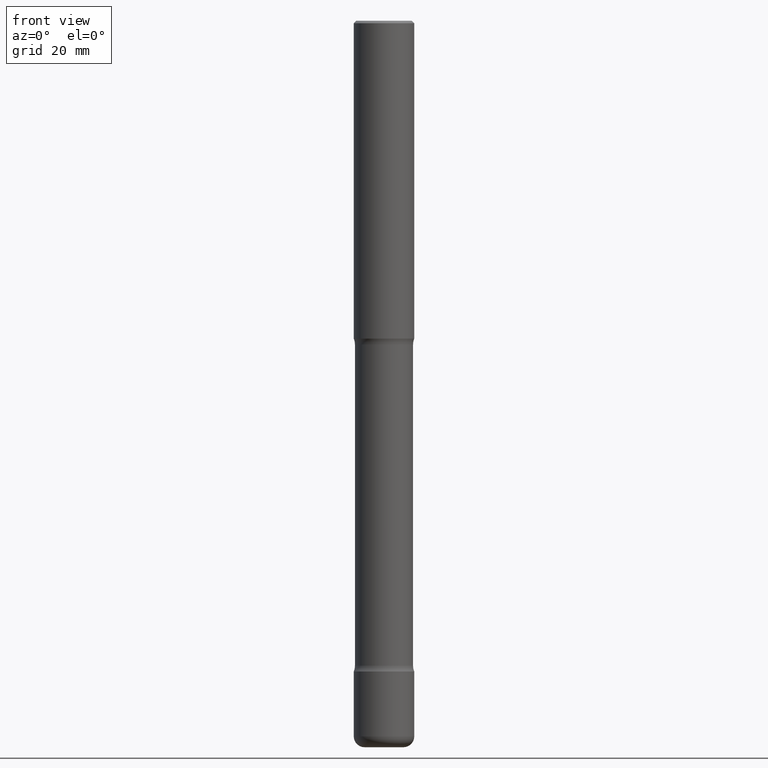
[diagram: clean part render]
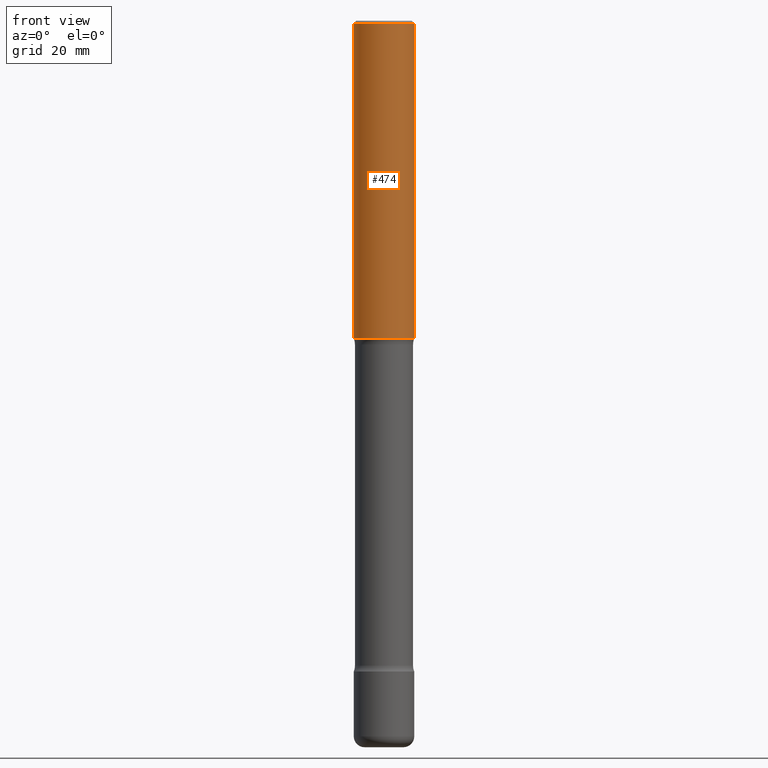
[diagram: same view with one face highlighted and labeled with its STEP entity id]
A machine part, front view. The second image highlights one B-rep face of the part: STEP entity #474.
In plain terms, the highlighted cylindrical surface (edge-blend (fillet) strip) has radius 6.35 mm, axis along (-0, 0, 1).
Its self-contained STEP definition (entity closure, byte-faithful):
#21 = CARTESIAN_POINT ( 'NONE',  ( -0.2499999999999999722, -2.841127231219808307E-15, -2.625000000000000444 ) ) ;
#23 = CARTESIAN_POINT ( 'NONE',  ( 6.419355616235984688E-29, -9.165138514463258190E-15, -2.625000000000000444 ) ) ;
#63 = EDGE_LOOP ( 'NONE', ( #548, #342, #152, #575 ) ) ;
#115 = CARTESIAN_POINT ( 'NONE',  ( -0.2499999999999997224, 1.675911042644701605E-15, -0.02000000000000005593 ) ) ;
#126 = DIRECTION ( 'NONE',  ( 1.000000000000000000, -6.982962677686266711E-15, 0.000000000000000000 ) ) ;
#134 = AXIS2_PLACEMENT_3D ( 'NONE', #179, #175, #423 ) ;
#152 = ORIENTED_EDGE ( 'NONE', *, *, #263, .T. ) ;
#175 = DIRECTION ( 'NONE',  ( -2.445468806185136597E-29, 3.491481338843145583E-15, 1.000000000000000000 ) ) ;
#177 = VERTEX_POINT ( 'NONE', #21 ) ;
#179 = CARTESIAN_POINT ( 'NONE',  ( 0.000000000000000000, 0.000000000000000000, 0.000000000000000000 ) ) ;
#205 = LINE ( 'NONE', #563, #447 ) ;
#244 = AXIS2_PLACEMENT_3D ( 'NONE', #383, #743, #126 ) ;
#253 = CIRCLE ( 'NONE', #801, 0.2500000000000000000 ) ;
#263 = EDGE_CURVE ( 'NONE', #625, #704, #462, .T. ) ;
#284 = EDGE_CURVE ( 'NONE', #177, #625, #253, .T. ) ;
#342 = ORIENTED_EDGE ( 'NONE', *, *, #284, .T. ) ;
#344 = CARTESIAN_POINT ( 'NONE',  ( 0.2500000000000000000, -1.091087918388482487E-14, -2.625000000000000444 ) ) ;
#345 = DIRECTION ( 'NONE',  ( -2.445468806185136597E-29, 3.491481338843145583E-15, 1.000000000000000000 ) ) ;
#350 = DIRECTION ( 'NONE',  ( 1.000000000000000000, -6.982962677686262766E-15, 0.000000000000000000 ) ) ;
#383 = CARTESIAN_POINT ( 'NONE',  ( 4.890937612370287172E-31, -6.982962677686310098E-17, -0.02000000000000005593 ) ) ;
#402 = DIRECTION ( 'NONE',  ( -2.445468806185136877E-29, 3.491481338843145188E-15, 1.000000000000000000 ) ) ;
#423 = DIRECTION ( 'NONE',  ( 1.000000000000000000, -6.982962677686266711E-15, 4.876176775795935793E-29 ) ) ;
#447 = VECTOR ( 'NONE', #510, 39.37007874015748143 ) ;
#462 = LINE ( 'NONE', #639, #664 ) ;
#472 = FACE_OUTER_BOUND ( 'NONE', #63, .T. ) ;
#474 = ADVANCED_FACE ( 'NONE', ( #472 ), #541, .T. ) ;
#510 = DIRECTION ( 'NONE',  ( -2.445468806185136877E-29, 3.491481338843145188E-15, 1.000000000000000000 ) ) ;
#541 = CYLINDRICAL_SURFACE ( 'NONE', #134, 0.2499999999999998612 ) ;
#542 = EDGE_CURVE ( 'NONE', #588, #704, #794, .T. ) ;
#548 = ORIENTED_EDGE ( 'NONE', *, *, #647, .F. ) ;
#563 = CARTESIAN_POINT ( 'NONE',  ( -0.2499999999999998612, 1.776356839400249479E-15, -1.229733772563725745E-29 ) ) ;
#575 = ORIENTED_EDGE ( 'NONE', *, *, #542, .F. ) ;
#588 = VERTEX_POINT ( 'NONE', #115 ) ;
#625 = VERTEX_POINT ( 'NONE', #344 ) ;
#639 = CARTESIAN_POINT ( 'NONE',  ( 0.2499999999999998612, -1.745740669421565692E-15, 1.219044193948983248E-29 ) ) ;
#647 = EDGE_CURVE ( 'NONE', #177, #588, #205, .T. ) ;
#664 = VECTOR ( 'NONE', #402, 39.37007874015748143 ) ;
#704 = VERTEX_POINT ( 'NONE', #757 ) ;
#743 = DIRECTION ( 'NONE',  ( -2.445468806185136597E-29, 3.491481338843145583E-15, 1.000000000000000000 ) ) ;
#757 = CARTESIAN_POINT ( 'NONE',  ( 0.2499999999999997224, -1.784954126219744217E-15, -0.02000000000000005593 ) ) ;
#794 = CIRCLE ( 'NONE', #244, 0.2499999999999997224 ) ;
#801 = AXIS2_PLACEMENT_3D ( 'NONE', #23, #345, #350 ) ;